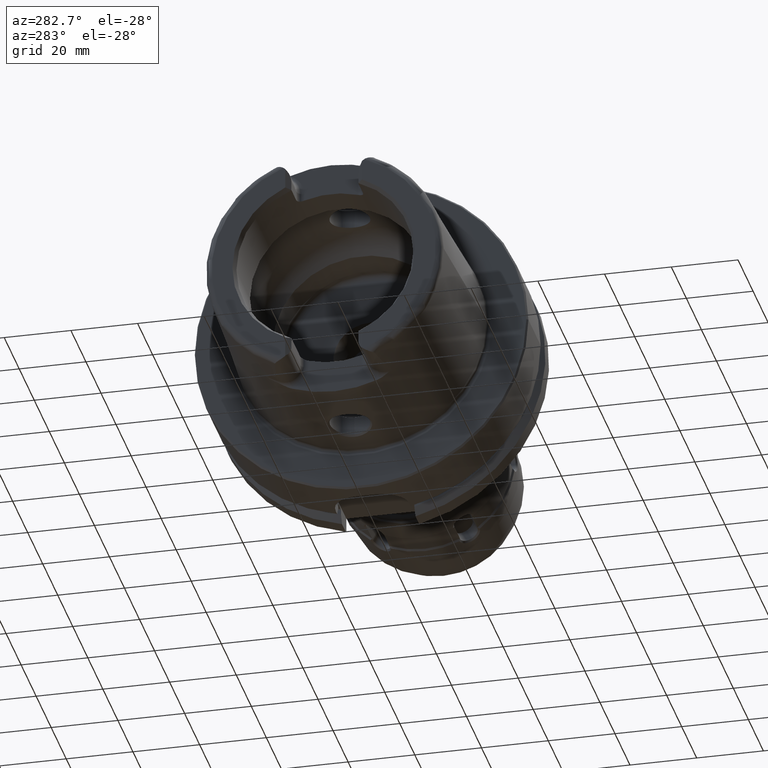
[diagram: clean part render]
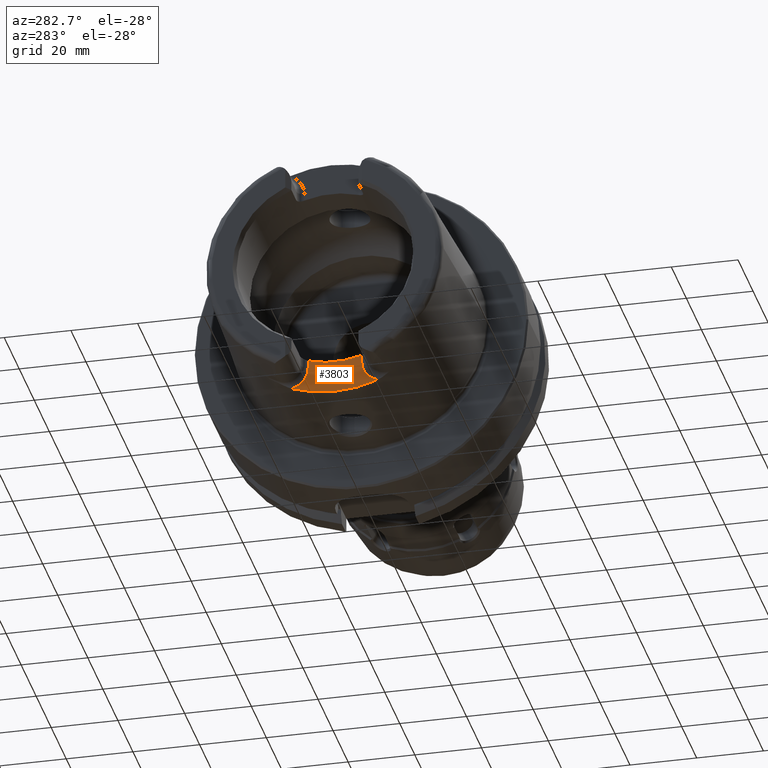
[diagram: same view with one face highlighted and labeled with its STEP entity id]
A machine part, auxiliary view. The second image highlights one B-rep face of the part: STEP entity #3803.
In plain terms, the highlighted planar face has unit normal (-1, 0, 0).
Its self-contained STEP definition (entity closure, byte-faithful):
#290=PLANE('',#4199);
#420=LINE('',#7022,#601);
#422=LINE('',#7031,#603);
#601=VECTOR('',#4957,10.);
#603=VECTOR('',#4969,10.);
#834=FACE_OUTER_BOUND('',#1052,.T.);
#1052=EDGE_LOOP('',(#2966,#2967,#2968,#2969,#2970,#2971));
#1242=CIRCLE('',#4093,36.25399498998);
#1297=CIRCLE('',#4194,6.88);
#1299=CIRCLE('',#4200,26.5);
#1300=CIRCLE('',#4201,6.88);
#1547=VERTEX_POINT('',#6088);
#1548=VERTEX_POINT('',#6099);
#1654=VERTEX_POINT('',#7007);
#1655=VERTEX_POINT('',#7011);
#1656=VERTEX_POINT('',#7028);
#1657=VERTEX_POINT('',#7030);
#1986=EDGE_CURVE('',#1547,#1548,#1242,.T.);
#2146=EDGE_CURVE('',#1654,#1547,#1297,.T.);
#2148=EDGE_CURVE('',#1655,#1654,#420,.T.);
#2151=EDGE_CURVE('',#1656,#1655,#1299,.T.);
#2152=EDGE_CURVE('',#1657,#1656,#422,.T.);
#2153=EDGE_CURVE('',#1548,#1657,#1300,.T.);
#2966=ORIENTED_EDGE('',*,*,#2146,.F.);
#2967=ORIENTED_EDGE('',*,*,#2148,.F.);
#2968=ORIENTED_EDGE('',*,*,#2151,.F.);
#2969=ORIENTED_EDGE('',*,*,#2152,.F.);
#2970=ORIENTED_EDGE('',*,*,#2153,.F.);
#2971=ORIENTED_EDGE('',*,*,#1986,.F.);
#3803=ADVANCED_FACE('',(#834),#290,.T.);
#4093=AXIS2_PLACEMENT_3D('',#6100,#4698,#4699);
#4194=AXIS2_PLACEMENT_3D('',#7009,#4953,#4954);
#4199=AXIS2_PLACEMENT_3D('',#7027,#4965,#4966);
#4200=AXIS2_PLACEMENT_3D('',#7029,#4967,#4968);
#4201=AXIS2_PLACEMENT_3D('',#7032,#4970,#4971);
#4698=DIRECTION('center_axis',(1.,0.,0.));
#4699=DIRECTION('ref_axis',(0.,1.,0.));
#4953=DIRECTION('center_axis',(-1.,0.,0.));
#4954=DIRECTION('ref_axis',(0.,0.510937901715381,-0.8596176246394));
#4957=DIRECTION('',(0.,0.,-1.));
#4965=DIRECTION('center_axis',(-1.,0.,0.));
#4966=DIRECTION('ref_axis',(0.,0.,1.));
#4967=DIRECTION('center_axis',(-1.,0.,0.));
#4968=DIRECTION('ref_axis',(0.,1.,0.));
#4969=DIRECTION('',(0.,0.,1.));
#4970=DIRECTION('center_axis',(-1.,0.,0.));
#4971=DIRECTION('ref_axis',(0.,-0.510937901715381,-0.8596176246394));
#6088=CARTESIAN_POINT('',(-35.,-12.7918651267415,-33.9222690767105));
#6099=CARTESIAN_POINT('',(-35.,12.7918651267415,-33.9222690767105));
#6100=CARTESIAN_POINT('Origin',(-35.,0.,0.));
#7007=CARTESIAN_POINT('',(-35.,-8.01,-27.37));
#7009=CARTESIAN_POINT('Origin',(-35.,-14.89,-27.37));
#7011=CARTESIAN_POINT('',(-35.,-8.01,-25.2604414054862));
#7022=CARTESIAN_POINT('',(-35.,-8.01,-28.685));
#7027=CARTESIAN_POINT('Origin',(-35.,8.88178419700125E-15,-30.));
#7028=CARTESIAN_POINT('',(-35.,8.01,-25.2604414054862));
#7029=CARTESIAN_POINT('Origin',(-35.,0.,0.));
#7030=CARTESIAN_POINT('',(-35.,8.01,-27.37));
#7031=CARTESIAN_POINT('',(-35.,8.01,-25.));
#7032=CARTESIAN_POINT('Origin',(-35.,14.89,-27.37));